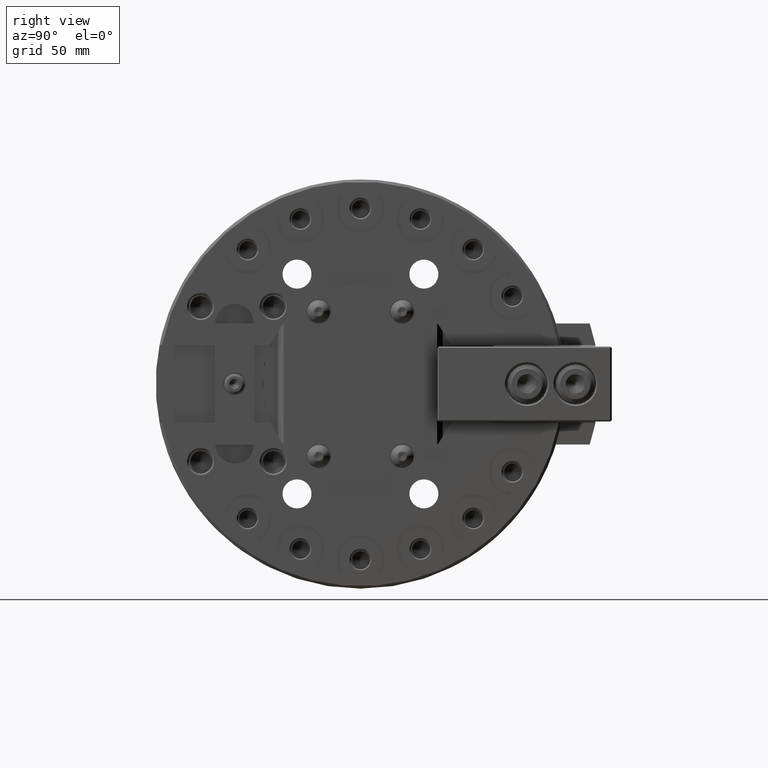
[diagram: clean part render]
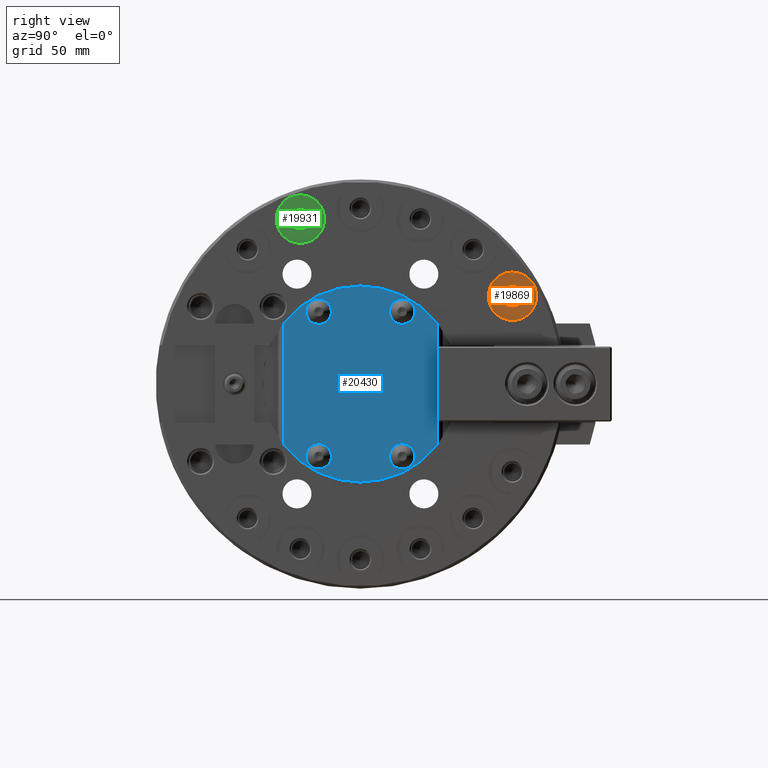
[diagram: same view with three faces highlighted in distinct colors, each labeled with its STEP entity id]
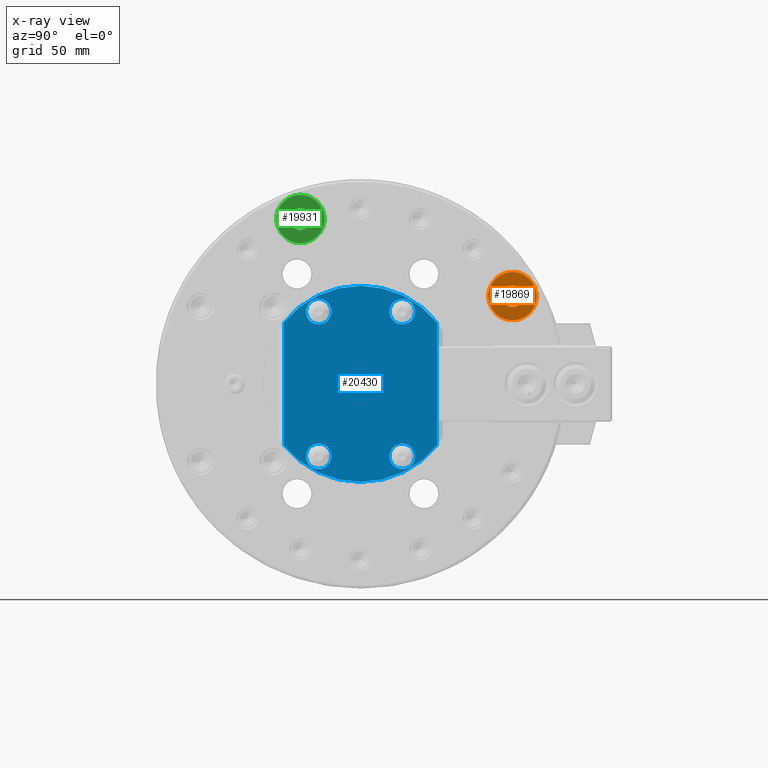
[diagram: x-ray of the same camera — body ghosted, the three highlighted faces saturated]
A machine part, right view with three faces highlighted in distinct colors.
The next image is the same camera in x-ray (body ghosted, the three faces saturated) — at least one of them is partly hidden behind the body in this view.
Their STEP definitions:

[orange] entity #19869 — the highlighted planar face has unit normal (-1, 0, 0).
#5112=ORIENTED_EDGE('',*,*,#10469,.F.);
#5113=ORIENTED_EDGE('',*,*,#10470,.T.);
#10469=EDGE_CURVE('',#13213,#13213,#15128,.T.);
#10470=EDGE_CURVE('',#13214,#13214,#15129,.T.);
#13213=VERTEX_POINT('',#29395);
#13214=VERTEX_POINT('',#29397);
#15128=CIRCLE('',#21424,10.);
#15129=CIRCLE('',#21425,4.5);
#15830=EDGE_LOOP('',(#5112));
#15831=EDGE_LOOP('',(#5113));
#17452=FACE_BOUND('',#15830,.T.);
#17453=FACE_BOUND('',#15831,.T.);
#18918=PLANE('',#21423);
#19869=ADVANCED_FACE('',(#17452,#17453),#18918,.F.);
#21423=AXIS2_PLACEMENT_3D('',#29393,#23627,#23628);
#21424=AXIS2_PLACEMENT_3D('',#29394,#23629,#23630);
#21425=AXIS2_PLACEMENT_3D('',#29396,#23631,#23632);
#23627=DIRECTION('',(-1.,0.,0.));
#23628=DIRECTION('',(0.,-1.39659334444375E-14,-1.));
#23629=DIRECTION('',(-1.,0.,0.));
#23630=DIRECTION('',(0.,1.39659334444375E-14,1.));
#23631=DIRECTION('',(-1.,0.,0.));
#23632=DIRECTION('',(0.,1.39659334444375E-14,1.));
#29393=CARTESIAN_POINT('',(-3.,62.7868417743723,36.2499999999992));
#29394=CARTESIAN_POINT('',(-3.,62.7868417743723,36.2499999999992));
#29395=CARTESIAN_POINT('',(-3.,62.7868417743724,46.2499999999992));
#29396=CARTESIAN_POINT('',(-3.,62.7868417743723,36.2499999999992));
#29397=CARTESIAN_POINT('',(-3.,62.7868417743723,40.7499999999992));

[blue] entity #20430 — the highlighted planar face has unit normal (1, 0, 0).
#1409=LINE('',#32220,#3526);
#1410=LINE('',#32225,#3527);
#3526=VECTOR('',#26298,1000.);
#3527=VECTOR('',#26301,1000.);
#7639=ORIENTED_EDGE('',*,*,#11704,.F.);
#7640=ORIENTED_EDGE('',*,*,#11705,.T.);
#7641=ORIENTED_EDGE('',*,*,#11706,.F.);
#7642=ORIENTED_EDGE('',*,*,#11707,.F.);
#7643=ORIENTED_EDGE('',*,*,#11708,.T.);
#7644=ORIENTED_EDGE('',*,*,#11709,.T.);
#7645=ORIENTED_EDGE('',*,*,#11710,.T.);
#7646=ORIENTED_EDGE('',*,*,#11711,.F.);
#11704=EDGE_CURVE('',#14111,#14111,#15466,.T.);
#11705=EDGE_CURVE('',#14112,#14113,#1409,.T.);
#11706=EDGE_CURVE('',#14114,#14113,#15467,.T.);
#11707=EDGE_CURVE('',#14115,#14114,#1410,.T.);
#11708=EDGE_CURVE('',#14115,#14112,#15468,.T.);
#11709=EDGE_CURVE('',#14116,#14116,#15469,.T.);
#11710=EDGE_CURVE('',#14117,#14117,#15470,.T.);
#11711=EDGE_CURVE('',#14118,#14118,#15471,.T.);
#14111=VERTEX_POINT('',#32219);
#14112=VERTEX_POINT('',#32221);
#14113=VERTEX_POINT('',#32222);
#14114=VERTEX_POINT('',#32224);
#14115=VERTEX_POINT('',#32226);
#14116=VERTEX_POINT('',#32229);
#14117=VERTEX_POINT('',#32231);
#14118=VERTEX_POINT('',#32233);
#15466=CIRCLE('',#22325,5.25000000000001);
#15467=CIRCLE('',#22326,40.5);
#15468=CIRCLE('',#22327,40.5);
#15469=CIRCLE('',#22328,5.25000000000001);
#15470=CIRCLE('',#22329,5.25000000000001);
#15471=CIRCLE('',#22330,5.25000000000001);
#16590=EDGE_LOOP('',(#7639));
#16591=EDGE_LOOP('',(#7640,#7641,#7642,#7643));
#16592=EDGE_LOOP('',(#7644));
#16593=EDGE_LOOP('',(#7645));
#16594=EDGE_LOOP('',(#7646));
#18239=FACE_BOUND('',#16590,.T.);
#18240=FACE_BOUND('',#16591,.T.);
#18241=FACE_BOUND('',#16592,.T.);
#18242=FACE_BOUND('',#16593,.T.);
#18243=FACE_BOUND('',#16594,.T.);
#19286=PLANE('',#22324);
#20430=ADVANCED_FACE('',(#18239,#18240,#18241,#18242,#18243),#19286,.T.);
#22324=AXIS2_PLACEMENT_3D('',#32217,#26294,#26295);
#22325=AXIS2_PLACEMENT_3D('',#32218,#26296,#26297);
#22326=AXIS2_PLACEMENT_3D('',#32223,#26299,#26300);
#22327=AXIS2_PLACEMENT_3D('',#32227,#26302,#26303);
#22328=AXIS2_PLACEMENT_3D('',#32228,#26304,#26305);
#22329=AXIS2_PLACEMENT_3D('',#32230,#26306,#26307);
#22330=AXIS2_PLACEMENT_3D('',#32232,#26308,#26309);
#26294=DIRECTION('',(1.,0.,0.));
#26295=DIRECTION('',(0.,0.,-1.));
#26296=DIRECTION('',(1.,0.,0.));
#26297=DIRECTION('',(0.,0.,-1.));
#26298=DIRECTION('',(0.,0.,1.));
#26299=DIRECTION('',(-1.,0.,0.));
#26300=DIRECTION('',(0.,0.,1.));
#26301=DIRECTION('',(0.,6.98296672221876E-15,1.));
#26302=DIRECTION('',(1.,0.,0.));
#26303=DIRECTION('',(0.,0.,-1.));
#26304=DIRECTION('',(-1.,0.,0.));
#26305=DIRECTION('',(0.,-6.98296672221876E-15,-1.));
#26306=DIRECTION('',(-1.,0.,0.));
#26307=DIRECTION('',(0.,0.,1.));
#26308=DIRECTION('',(1.,0.,0.));
#26309=DIRECTION('',(0.,-6.98296672221876E-15,1.));
#32217=CARTESIAN_POINT('',(0.299999999999995,0.,0.));
#32218=CARTESIAN_POINT('',(0.299999999999996,17.25,-29.8778764305631));
#32219=CARTESIAN_POINT('',(0.299999999999996,17.25,-35.1278764305631));
#32220=CARTESIAN_POINT('',(0.299999999999995,31.6905989232415,-40.5));
#32221=CARTESIAN_POINT('',(0.299999999999995,31.6905989232415,-25.2181668621303));
#32222=CARTESIAN_POINT('',(0.299999999999995,31.6905989232415,25.2181668621303));
#32223=CARTESIAN_POINT('',(0.299999999999995,0.,0.));
#32224=CARTESIAN_POINT('',(0.299999999999995,-31.6905989232417,25.21816686213));
#32225=CARTESIAN_POINT('',(0.299999999999995,-31.6905989232418,-40.4999999999998));
#32226=CARTESIAN_POINT('',(0.299999999999995,-31.6905989232417,-25.21816686213));
#32227=CARTESIAN_POINT('',(0.299999999999995,0.,0.));
#32228=CARTESIAN_POINT('',(0.299999999999996,-17.2500000000003,-29.877876430563));
#32229=CARTESIAN_POINT('',(0.299999999999996,-17.2500000000003,-35.127876430563));
#32230=CARTESIAN_POINT('',(0.299999999999996,17.25,29.8778764305631));
#32231=CARTESIAN_POINT('',(0.299999999999996,17.25,35.1278764305631));
#32232=CARTESIAN_POINT('',(0.299999999999996,-17.2500000000003,29.877876430563));
#32233=CARTESIAN_POINT('',(0.299999999999996,-17.2500000000003,35.127876430563));

[green] entity #19931 — the highlighted planar face has unit normal (-1, 0, 0).
#5304=ORIENTED_EDGE('',*,*,#10545,.T.);
#5305=ORIENTED_EDGE('',*,*,#10546,.F.);
#10545=EDGE_CURVE('',#13279,#13279,#15183,.T.);
#10546=EDGE_CURVE('',#13280,#13280,#15184,.T.);
#13279=VERTEX_POINT('',#29605);
#13280=VERTEX_POINT('',#29607);
#15183=CIRCLE('',#21541,4.5);
#15184=CIRCLE('',#21542,10.);
#15942=EDGE_LOOP('',(#5304));
#15943=EDGE_LOOP('',(#5305));
#17570=FACE_BOUND('',#15942,.T.);
#17571=FACE_BOUND('',#15943,.T.);
#18942=PLANE('',#21540);
#19931=ADVANCED_FACE('',(#17570,#17571),#18942,.F.);
#21540=AXIS2_PLACEMENT_3D('',#29603,#23880,#23881);
#21541=AXIS2_PLACEMENT_3D('',#29604,#23882,#23883);
#21542=AXIS2_PLACEMENT_3D('',#29606,#23884,#23885);
#23880=DIRECTION('',(-1.,0.,0.));
#23881=DIRECTION('',(0.,-1.39659334444375E-14,-1.));
#23882=DIRECTION('',(-1.,0.,0.));
#23883=DIRECTION('',(0.,1.39659334444375E-14,1.));
#23884=DIRECTION('',(-1.,0.,0.));
#23885=DIRECTION('',(0.,1.39659334444375E-14,1.));
#29603=CARTESIAN_POINT('',(-3.,-24.7964603911103,68.1277150069786));
#29604=CARTESIAN_POINT('',(-3.,-24.7964603911103,68.1277150069786));
#29605=CARTESIAN_POINT('',(-3.,-24.7964603911103,72.6277150069786));
#29606=CARTESIAN_POINT('',(-3.,-24.7964603911103,68.1277150069786));
#29607=CARTESIAN_POINT('',(-3.,-24.7964603911102,78.1277150069786));